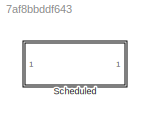
MODEL slx_7af8bbddf643
KIND model
CONFIG AbsTol = auto
CONFIG EnableMultiTasking = off
CONFIG FixedStep = auto
CONFIG MaxStep = auto
CONFIG MinStep = auto
CONFIG RelTol = 1e-3
CONFIG SampleTimeConstraint = Unconstrained
CONFIG SolverName = VariableStepAuto
CONFIG StartTime = 0.0
CONFIG StopTime = 10.0
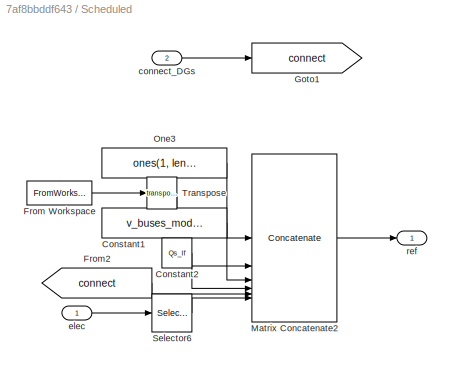
BLOCK [SubSystem] Scheduled
  NameLocation = top
  VariantControl = Scheduled
BLOCK [Constant] Scheduled/Constant1
  Value = v_buses_mod(buses_lf)
  VectorParams1D = off
BLOCK [Constant] Scheduled/Constant2
  Value = Qs_lf
  VectorParams1D = off
BLOCK [FromWorkspace] Scheduled/From Workspace
  Interpolate = off
  OutputAfterFinalValue = Holding final value
  SampleTime = Psche(1,1)
  VariableName = [0 Ps_lf; Psche]
BLOCK [From] Scheduled/From2
  GotoTag = connect
BLOCK [Goto] Scheduled/Goto1
  GotoTag = connect
BLOCK [Concatenate] Scheduled/Matrix Concatenate2
  Mode = Multidimensional array
  NumInputs = 6
BLOCK [Constant] Scheduled/One3
  OutDataTypeStr = Inherit: Inherit via back propagation
  Value = ones(1, length(buses_lf))
  VectorParams1D = off
BLOCK [Selector] Scheduled/Selector6
  IndexOptions = Index vector (dialog),Select all
  Indices = 6,1
  InputPortWidth = 3
  NumberOfDimensions = 2
  OutputSizes = 1,1
BLOCK [Math] Scheduled/Transpose
  Operator = transpose
BLOCK [Inport] Scheduled/connect_DGs
  Port = 2
BLOCK [Inport] Scheduled/elec
BLOCK [Outport] Scheduled/ref
LINE Scheduled/Constant1:1 -> Scheduled/Matrix Concatenate2:3
LINE Scheduled/Constant2:1 -> Scheduled/Matrix Concatenate2:4
LINE Scheduled/From Workspace:1 -> Scheduled/Transpose:1
LINE Scheduled/From2:1 -> Scheduled/Matrix Concatenate2:5
LINE Scheduled/Matrix Concatenate2:1 -> Scheduled/ref:1
LINE Scheduled/One3:1 -> Scheduled/Matrix Concatenate2:1
LINE Scheduled/Selector6:1 -> Scheduled/Matrix Concatenate2:6
LINE Scheduled/Transpose:1 -> Scheduled/Matrix Concatenate2:2
LINE Scheduled/connect_DGs:1 -> Scheduled/Goto1:1
LINE Scheduled/elec:1 -> Scheduled/Selector6:1
